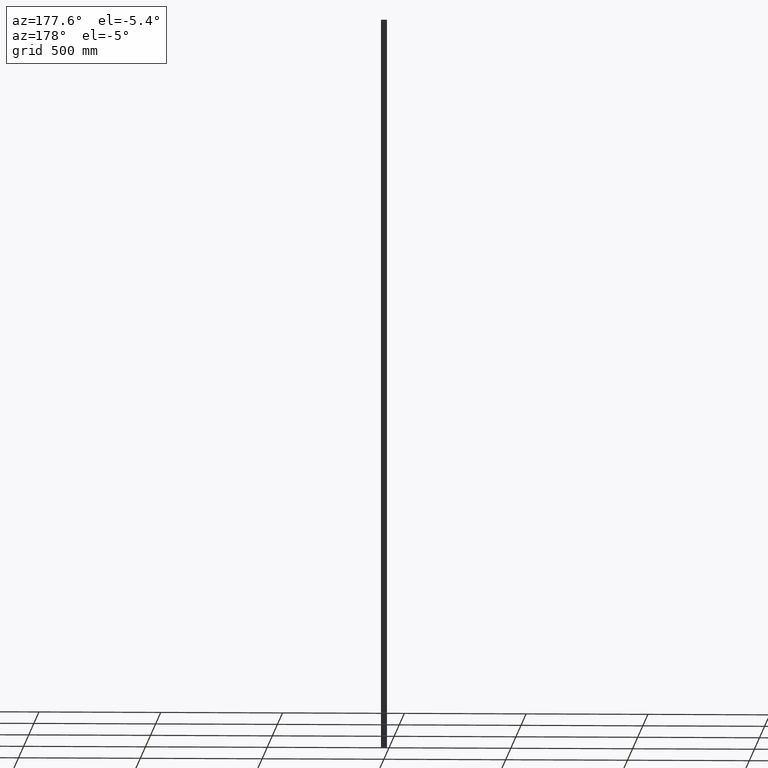
[diagram: clean part render]
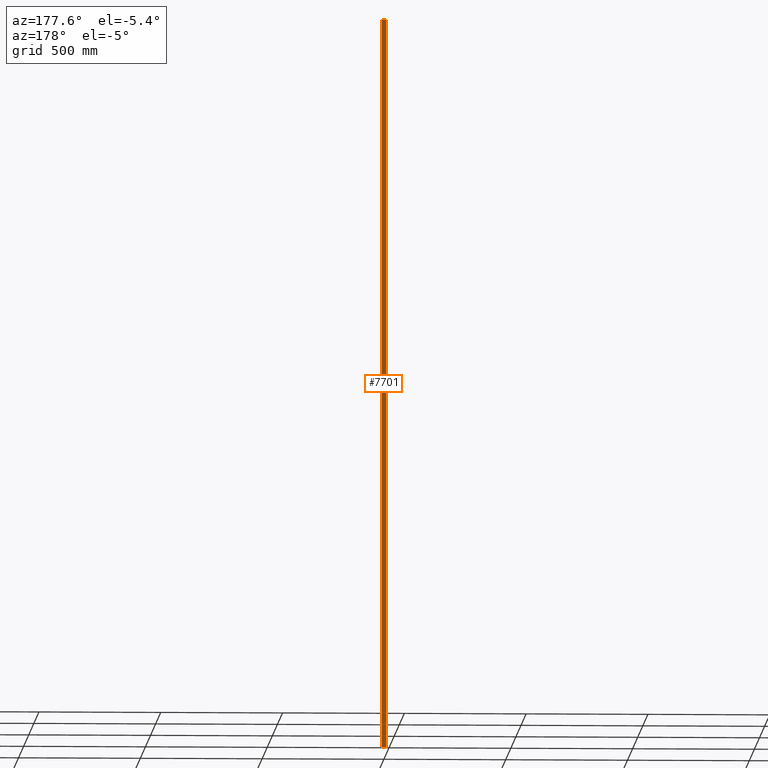
[diagram: same view with one face highlighted and labeled with its STEP entity id]
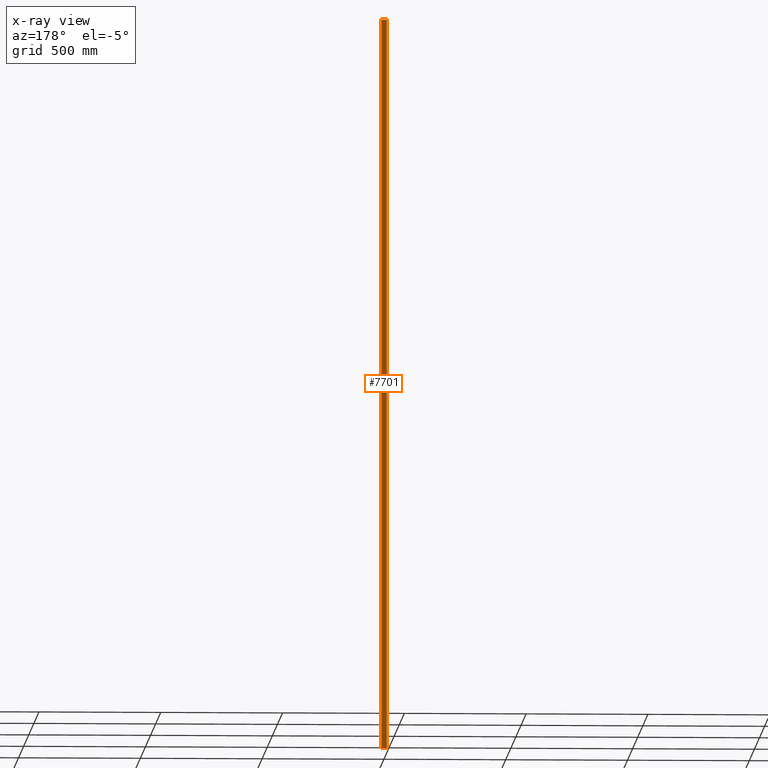
[diagram: x-ray of the same camera — body ghosted, the highlighted face saturated]
A machine part, auxiliary view. The second image highlights one B-rep face of the part: STEP entity #7701.
The next image is the same camera in x-ray: the body ghosted, the highlighted face saturated — about 0% of this face is hidden behind the body in this view.
In plain terms, the highlighted planar face has unit normal (-0, 1, 0).
Its self-contained STEP definition (entity closure, byte-faithful):
#79 = VECTOR ( 'NONE', #14454, 1000.000000000000000 ) ;
#171 = VERTEX_POINT ( 'NONE', #14723 ) ;
#223 = LINE ( 'NONE', #2932, #12481 ) ;
#275 = ORIENTED_EDGE ( 'NONE', *, *, #12963, .T. ) ;
#1592 = VECTOR ( 'NONE', #6891, 1000.000000000000000 ) ;
#1751 = ORIENTED_EDGE ( 'NONE', *, *, #8911, .T. ) ;
#1972 = LINE ( 'NONE', #10380, #1592 ) ;
#2932 = CARTESIAN_POINT ( 'NONE',  ( -10.00000000000000200, 19.99999999999999300, 1500.000000000000000 ) ) ;
#3108 = VECTOR ( 'NONE', #9650, 1000.000000000000000 ) ;
#3335 = CARTESIAN_POINT ( 'NONE',  ( 9.999999999999998200, 19.99999999999999600, -1500.000000000000000 ) ) ;
#4129 = DIRECTION ( 'NONE',  ( 1.000000000000000000, 1.734723475976807100E-016, 0.0000000000000000000 ) ) ;
#5774 = ORIENTED_EDGE ( 'NONE', *, *, #8771, .F. ) ;
#6459 = LINE ( 'NONE', #11919, #3108 ) ;
#6465 = FACE_OUTER_BOUND ( 'NONE', #11057, .T. ) ;
#6891 = DIRECTION ( 'NONE',  ( -0.0000000000000000000, -0.0000000000000000000, -1.000000000000000000 ) ) ;
#6929 = CARTESIAN_POINT ( 'NONE',  ( -10.00000000000000200, 19.99999999999999300, -1500.000000000000000 ) ) ;
#6973 = PLANE ( 'NONE',  #11723 ) ;
#7699 = VERTEX_POINT ( 'NONE', #6929 ) ;
#7701 = ADVANCED_FACE ( 'NONE', ( #6465 ), #6973, .T. ) ;
#8641 = CARTESIAN_POINT ( 'NONE',  ( 9.999999999999998200, 19.99999999999999600, 1500.000000000000000 ) ) ;
#8771 = EDGE_CURVE ( 'NONE', #11627, #7699, #1972, .T. ) ;
#8911 = EDGE_CURVE ( 'NONE', #171, #13485, #13855, .T. ) ;
#9062 = ORIENTED_EDGE ( 'NONE', *, *, #11671, .F. ) ;
#9650 = DIRECTION ( 'NONE',  ( 1.000000000000000000, 1.734723475976807100E-016, 0.0000000000000000000 ) ) ;
#10380 = CARTESIAN_POINT ( 'NONE',  ( -10.00000000000000200, 19.99999999999999300, 1500.000000000000000 ) ) ;
#10867 = CARTESIAN_POINT ( 'NONE',  ( -10.00000000000000200, 19.99999999999999300, 1500.000000000000000 ) ) ;
#11057 = EDGE_LOOP ( 'NONE', ( #9062, #5774, #275, #1751 ) ) ;
#11627 = VERTEX_POINT ( 'NONE', #10867 ) ;
#11671 = EDGE_CURVE ( 'NONE', #7699, #13485, #6459, .T. ) ;
#11704 = DIRECTION ( 'NONE',  ( -1.734723475976807100E-016, 1.000000000000000000, 0.0000000000000000000 ) ) ;
#11723 = AXIS2_PLACEMENT_3D ( 'NONE', #15267, #11704, #12945 ) ;
#11919 = CARTESIAN_POINT ( 'NONE',  ( -10.00000000000000200, 19.99999999999999300, -1500.000000000000000 ) ) ;
#12481 = VECTOR ( 'NONE', #4129, 1000.000000000000000 ) ;
#12945 = DIRECTION ( 'NONE',  ( -1.000000000000000000, -1.734723475976807100E-016, 0.0000000000000000000 ) ) ;
#12963 = EDGE_CURVE ( 'NONE', #11627, #171, #223, .T. ) ;
#13485 = VERTEX_POINT ( 'NONE', #3335 ) ;
#13855 = LINE ( 'NONE', #8641, #79 ) ;
#14454 = DIRECTION ( 'NONE',  ( -0.0000000000000000000, -0.0000000000000000000, -1.000000000000000000 ) ) ;
#14723 = CARTESIAN_POINT ( 'NONE',  ( 9.999999999999998200, 19.99999999999999600, 1500.000000000000000 ) ) ;
#15267 = CARTESIAN_POINT ( 'NONE',  ( -10.00000000000000200, 19.99999999999999300, 1500.000000000000000 ) ) ;